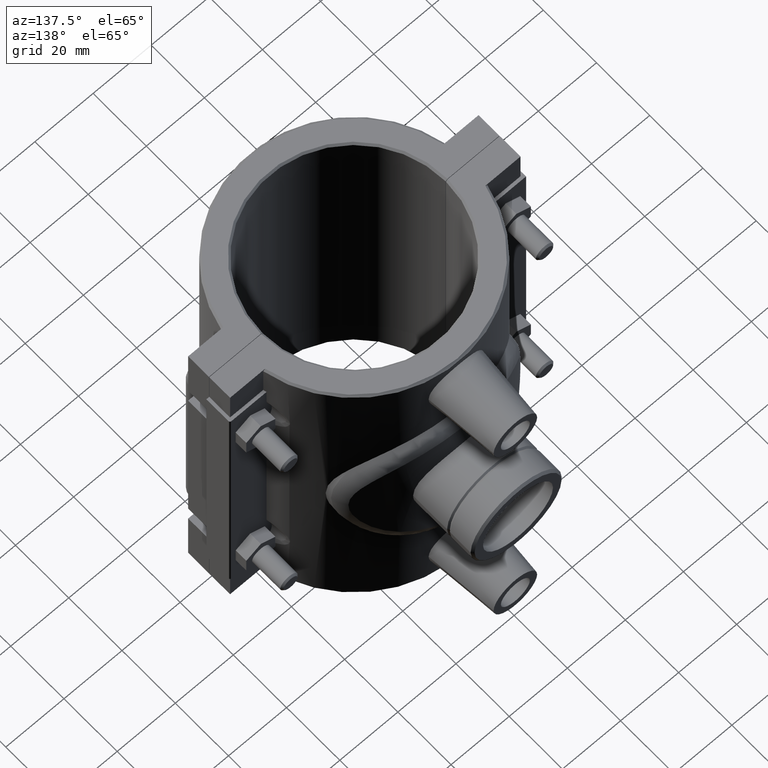
[diagram: clean part render]
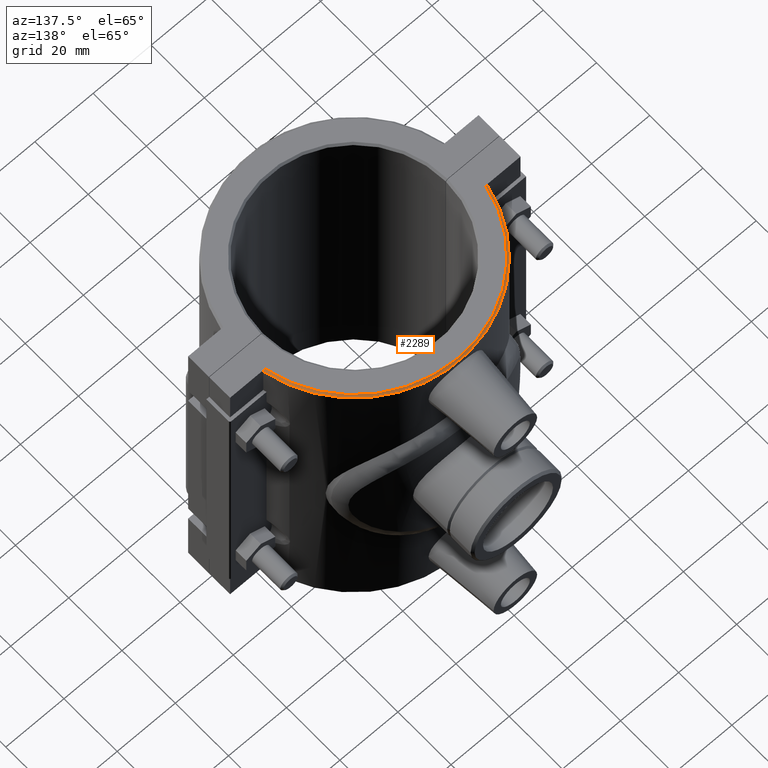
[diagram: same view with one face highlighted and labeled with its STEP entity id]
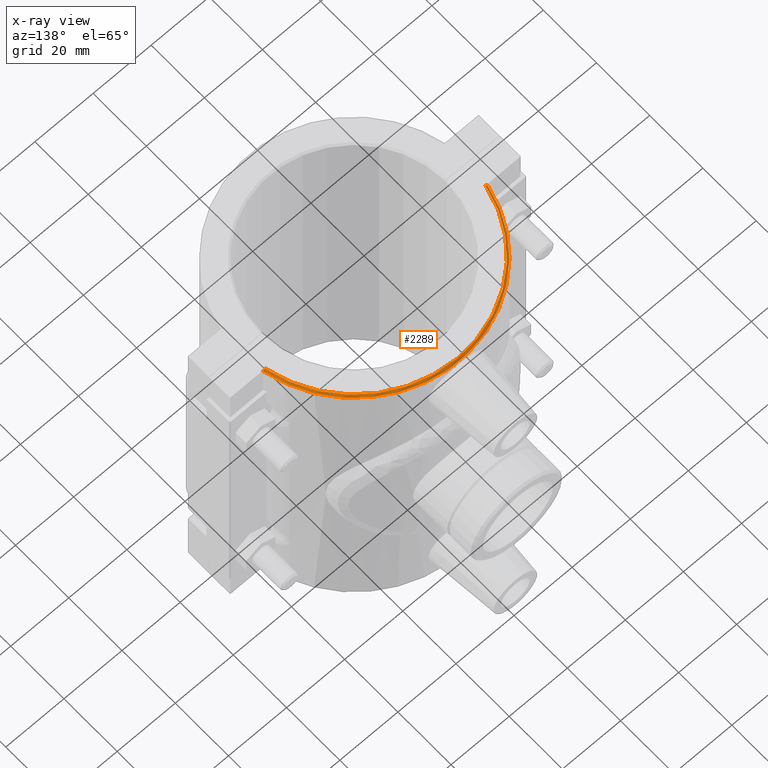
[diagram: x-ray of the same camera — body ghosted, the highlighted face saturated]
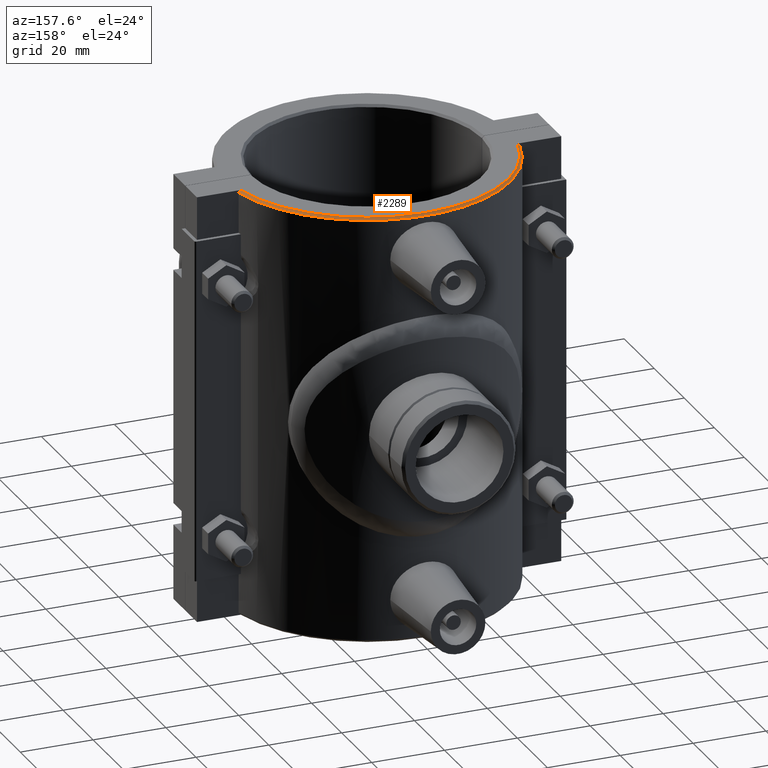
[diagram: same view with one face highlighted and labeled with its STEP entity id]
A machine part, auxiliary view. The second image highlights one B-rep face of the part: STEP entity #2289.
The next image is the same camera in x-ray: the body ghosted, the highlighted face saturated — about 0% of this face is hidden behind the body in this view.
A second angle (auxiliary view) of the same face is appended — the face is thin or edge-on in the first view.
In plain terms, the highlighted conical surface has half-angle 45 deg.
Its self-contained STEP definition (entity closure, byte-faithful):
#26=CONICAL_SURFACE('',#2474,39.06,45.0000000000002);
#36=(
BOUNDED_CURVE()
B_SPLINE_CURVE(2,(#3328,#3329,#3330),.UNSPECIFIED.,.F.,.F.)
B_SPLINE_CURVE_WITH_KNOTS((3,3),(0.,0.090034318503411),.UNSPECIFIED.)
CURVE()
GEOMETRIC_REPRESENTATION_ITEM()
RATIONAL_B_SPLINE_CURVE((1.,1.00003389760153,1.))
REPRESENTATION_ITEM('')
);
#37=(
BOUNDED_CURVE()
B_SPLINE_CURVE(2,(#3532,#3533,#3534),.UNSPECIFIED.,.F.,.F.)
B_SPLINE_CURVE_WITH_KNOTS((3,3),(0.,0.0900343185034107),.UNSPECIFIED.)
CURVE()
GEOMETRIC_REPRESENTATION_ITEM()
RATIONAL_B_SPLINE_CURVE((1.,1.00003389763031,1.))
REPRESENTATION_ITEM('')
);
#258=FACE_OUTER_BOUND('',#429,.T.);
#429=EDGE_LOOP('',(#1929,#1930,#1931,#1932));
#897=CIRCLE('',#2410,39.375);
#925=CIRCLE('',#2475,38.745);
#989=VERTEX_POINT('',#3325);
#990=VERTEX_POINT('',#3327);
#1035=VERTEX_POINT('',#3529);
#1036=VERTEX_POINT('',#3531);
#1213=EDGE_CURVE('',#990,#989,#36,.F.);
#1273=EDGE_CURVE('',#1036,#1035,#37,.F.);
#1315=EDGE_CURVE('',#1035,#990,#897,.T.);
#1415=EDGE_CURVE('',#989,#1036,#925,.T.);
#1929=ORIENTED_EDGE('',*,*,#1273,.T.);
#1930=ORIENTED_EDGE('',*,*,#1315,.T.);
#1931=ORIENTED_EDGE('',*,*,#1213,.T.);
#1932=ORIENTED_EDGE('',*,*,#1415,.T.);
#2289=ADVANCED_FACE('',(#258),#26,.T.);
#2410=AXIS2_PLACEMENT_3D('',#3754,#2798,#2799);
#2474=AXIS2_PLACEMENT_3D('',#4186,#2980,#2981);
#2475=AXIS2_PLACEMENT_3D('',#4187,#2982,#2983);
#2798=DIRECTION('center_axis',(0.,0.,1.));
#2799=DIRECTION('ref_axis',(1.,0.,0.));
#2980=DIRECTION('center_axis',(0.,0.,-1.));
#2981=DIRECTION('ref_axis',(1.,0.,0.));
#2982=DIRECTION('center_axis',(0.,0.,-1.));
#2983=DIRECTION('ref_axis',(1.,0.,0.));
#3325=CARTESIAN_POINT('',(-37.936254427658,7.875,59.));
#3327=CARTESIAN_POINT('',(-38.5794634488351,7.875,58.37));
#3328=CARTESIAN_POINT('Ctrl Pts',(-37.936254427658,7.875,59.));
#3329=CARTESIAN_POINT('Ctrl Pts',(-38.2552653535105,7.875,58.6876479636509));
#3330=CARTESIAN_POINT('Ctrl Pts',(-38.5794634488351,7.875,58.37));
#3529=CARTESIAN_POINT('',(38.5794634488351,7.87499999999999,58.37));
#3531=CARTESIAN_POINT('',(37.936254427658,7.87499999999999,59.));
#3532=CARTESIAN_POINT('Ctrl Pts',(38.5794634488351,7.87499999999999,58.37));
#3533=CARTESIAN_POINT('Ctrl Pts',(38.2552653535041,7.87499999999999,58.6876479636572));
#3534=CARTESIAN_POINT('Ctrl Pts',(37.936254427658,7.87499999999999,59.));
#3754=CARTESIAN_POINT('Origin',(0.,0.,58.37));
#4186=CARTESIAN_POINT('Origin',(0.,0.,58.685));
#4187=CARTESIAN_POINT('Origin',(0.,0.,59.));